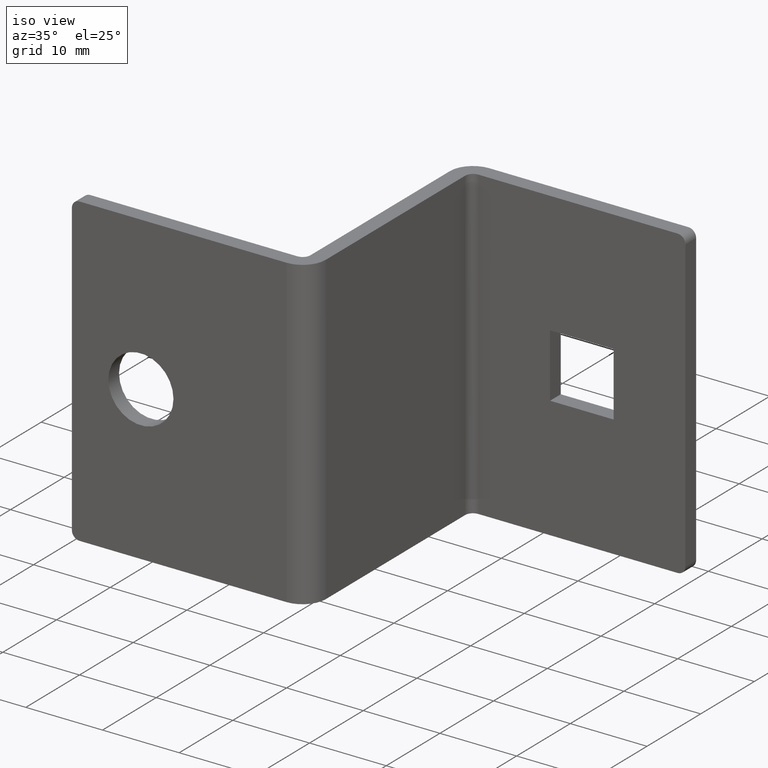
[diagram: clean part render]
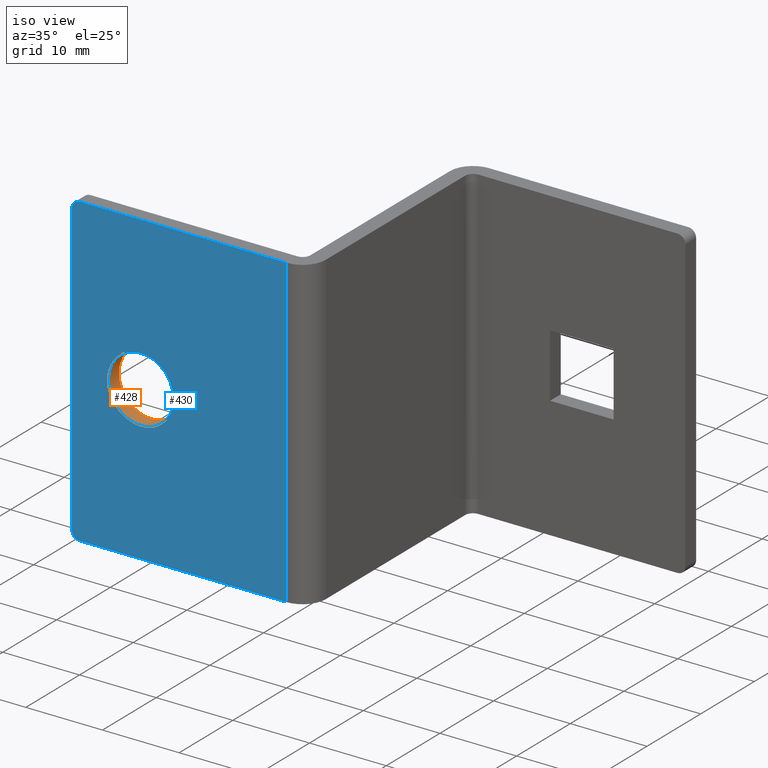
[diagram: same view with the hole feature highlighted: cylindrical wall and planar end face, labeled with their STEP entity ids]
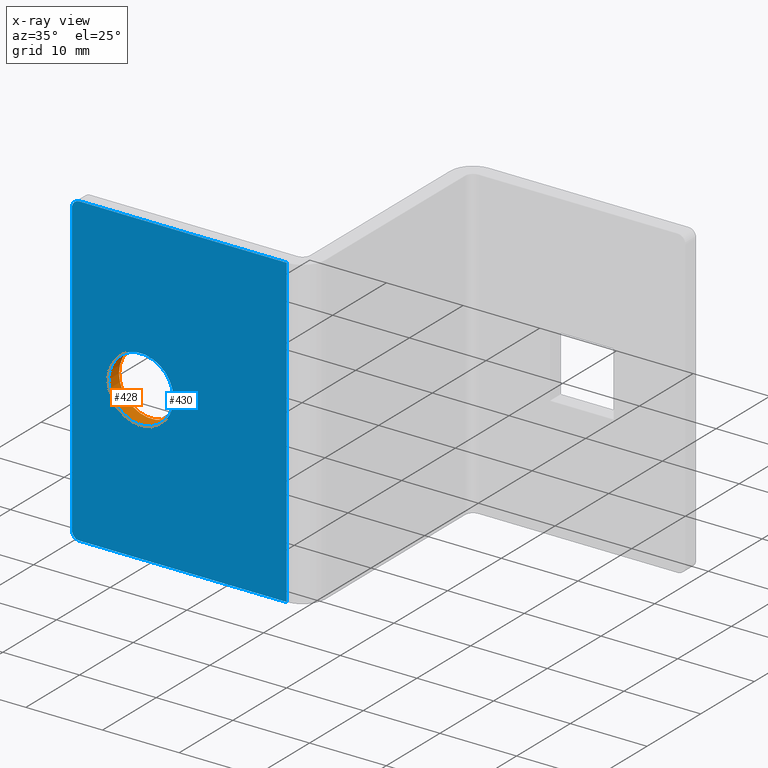
[diagram: x-ray of the same camera — body ghosted, the hole faces saturated]
A machine part, iso view. The highlighted faces form one hole feature of diameter 8.5 mm: the cylindrical wall (entity #428, orange) and its adjacent planar end face (entity #430, blue) — they share a circular edge in the B-rep.
The next image is the same camera in x-ray (body ghosted, the hole faces saturated) — the bore reads through the body.
Wall:
#117=FACE_BOUND('',#146,.T.);
#122=FACE_OUTER_BOUND('',#145,.T.);
#145=EDGE_LOOP('',(#295));
#146=EDGE_LOOP('',(#296));
#173=CIRCLE('',#454,4.25);
#174=CIRCLE('',#455,4.25);
#191=VERTEX_POINT('',#624);
#192=VERTEX_POINT('',#626);
#233=EDGE_CURVE('',#191,#191,#173,.T.);
#234=EDGE_CURVE('',#192,#192,#174,.T.);
#295=ORIENTED_EDGE('',*,*,#233,.F.);
#296=ORIENTED_EDGE('',*,*,#234,.F.);
#419=CYLINDRICAL_SURFACE('',#453,4.25);
#428=ADVANCED_FACE('',(#122,#117),#419,.F.);
#453=AXIS2_PLACEMENT_3D('',#623,#496,#497);
#454=AXIS2_PLACEMENT_3D('',#625,#498,#499);
#455=AXIS2_PLACEMENT_3D('',#627,#500,#501);
#496=DIRECTION('center_axis',(3.1720657846433E-16,1.,0.));
#497=DIRECTION('ref_axis',(1.,-3.1720657846433E-16,0.));
#498=DIRECTION('center_axis',(0.,1.,0.));
#499=DIRECTION('ref_axis',(1.,-3.1720657846433E-16,0.));
#500=DIRECTION('center_axis',(-3.1720657846433E-16,-1.,0.));
#501=DIRECTION('ref_axis',(1.,-3.1720657846433E-16,0.));
#623=CARTESIAN_POINT('Origin',(20.0125837680259,-40.4338693985623,20.));
#624=CARTESIAN_POINT('',(15.7625837680259,35.7006300239079,20.));
#625=CARTESIAN_POINT('Origin',(20.0125837680259,35.7006300239079,20.));
#626=CARTESIAN_POINT('',(24.2625837680259,37.7006300239079,20.));
#627=CARTESIAN_POINT('Origin',(20.0125837680259,37.7006300239079,20.));
End face:
#15=PLANE('',#459);
#31=LINE('',#639,#75);
#32=LINE('',#643,#76);
#33=LINE('',#645,#77);
#34=LINE('',#646,#78);
#75=VECTOR('',#512,38.);
#76=VECTOR('',#515,27.);
#77=VECTOR('',#516,40.);
#78=VECTOR('',#517,27.);
#118=FACE_BOUND('',#149,.T.);
#124=FACE_OUTER_BOUND('',#148,.T.);
#148=EDGE_LOOP('',(#301,#302,#303,#304,#305,#306));
#149=EDGE_LOOP('',(#307));
#173=CIRCLE('',#454,4.25);
#175=CIRCLE('',#457,1.);
#177=CIRCLE('',#460,1.);
#191=VERTEX_POINT('',#624);
#193=VERTEX_POINT('',#629);
#194=VERTEX_POINT('',#630);
#197=VERTEX_POINT('',#638);
#198=VERTEX_POINT('',#640);
#199=VERTEX_POINT('',#642);
#200=VERTEX_POINT('',#644);
#233=EDGE_CURVE('',#191,#191,#173,.T.);
#235=EDGE_CURVE('',#193,#194,#175,.T.);
#239=EDGE_CURVE('',#197,#193,#31,.T.);
#240=EDGE_CURVE('',#198,#197,#177,.T.);
#241=EDGE_CURVE('',#198,#199,#32,.T.);
#242=EDGE_CURVE('',#199,#200,#33,.T.);
#243=EDGE_CURVE('',#194,#200,#34,.T.);
#301=ORIENTED_EDGE('',*,*,#235,.F.);
#302=ORIENTED_EDGE('',*,*,#239,.F.);
#303=ORIENTED_EDGE('',*,*,#240,.F.);
#304=ORIENTED_EDGE('',*,*,#241,.T.);
#305=ORIENTED_EDGE('',*,*,#242,.T.);
#306=ORIENTED_EDGE('',*,*,#243,.F.);
#307=ORIENTED_EDGE('',*,*,#233,.T.);
#430=ADVANCED_FACE('',(#124,#118),#15,.T.);
#454=AXIS2_PLACEMENT_3D('',#625,#498,#499);
#457=AXIS2_PLACEMENT_3D('',#631,#504,#505);
#459=AXIS2_PLACEMENT_3D('',#637,#510,#511);
#460=AXIS2_PLACEMENT_3D('',#641,#513,#514);
#498=DIRECTION('center_axis',(0.,1.,0.));
#499=DIRECTION('ref_axis',(1.,-3.1720657846433E-16,0.));
#504=DIRECTION('center_axis',(0.,1.,0.));
#505=DIRECTION('ref_axis',(-0.707106781186546,0.,0.707106781186549));
#510=DIRECTION('center_axis',(0.,-1.,0.));
#511=DIRECTION('ref_axis',(1.,0.,0.));
#512=DIRECTION('',(0.,0.,1.));
#513=DIRECTION('center_axis',(0.,1.,0.));
#514=DIRECTION('ref_axis',(-0.707106781186548,0.,-0.707106781186547));
#515=DIRECTION('',(1.,0.,0.));
#516=DIRECTION('',(0.,0.,1.));
#517=DIRECTION('',(1.,0.,0.));
#624=CARTESIAN_POINT('',(15.7625837680259,35.7006300239079,20.));
#625=CARTESIAN_POINT('Origin',(20.0125837680259,35.7006300239079,20.));
#629=CARTESIAN_POINT('',(11.0125837680259,35.7006300239079,39.));
#630=CARTESIAN_POINT('',(12.0125837680259,35.7006300239079,40.));
#631=CARTESIAN_POINT('Origin',(12.0125837680259,35.7006300239079,39.));
#637=CARTESIAN_POINT('Origin',(11.0125837680259,35.7006300239079,0.));
#638=CARTESIAN_POINT('',(11.0125837680259,35.7006300239079,1.));
#639=CARTESIAN_POINT('',(11.0125837680259,35.7006300239079,0.));
#640=CARTESIAN_POINT('',(12.0125837680259,35.7006300239079,0.));
#641=CARTESIAN_POINT('Origin',(12.0125837680259,35.7006300239079,1.));
#642=CARTESIAN_POINT('',(39.0125837680259,35.7006300239079,0.));
#643=CARTESIAN_POINT('',(11.0125837680259,35.7006300239079,0.));
#644=CARTESIAN_POINT('',(39.0125837680259,35.7006300239079,40.));
#645=CARTESIAN_POINT('',(39.0125837680259,35.7006300239079,0.));
#646=CARTESIAN_POINT('',(11.0125837680259,35.7006300239079,40.));